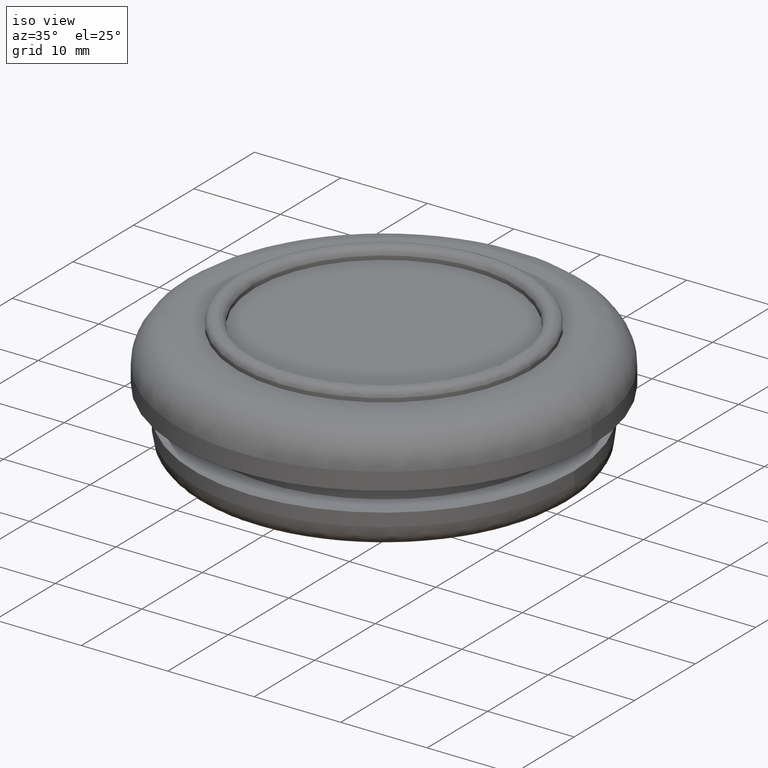
[diagram: clean part render]
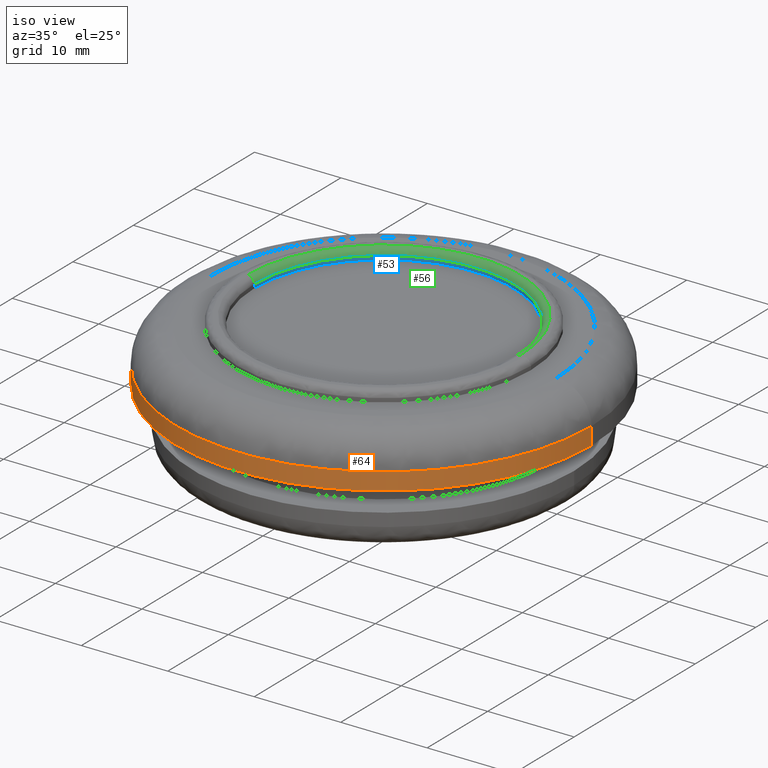
[diagram: same view with three faces highlighted in distinct colors, each labeled with its STEP entity id]
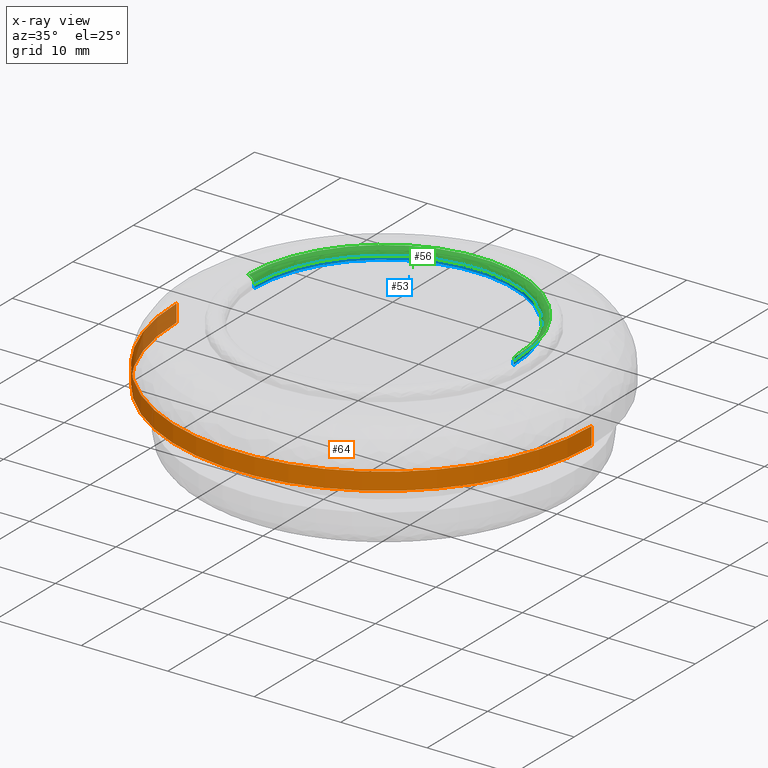
[diagram: x-ray of the same camera — body ghosted, the three highlighted faces saturated]
A machine part, iso view with three faces highlighted in distinct colors.
The next image is the same camera in x-ray (body ghosted, the three faces saturated) — at least one of them is partly hidden behind the body in this view.
Their STEP definitions:

[orange] entity #64 — the highlighted cylindrical surface (partial cylindrical patch) has radius 24 mm, axis along (0, -0, 1).
#64=ADVANCED_FACE('',(#313),#312,.T.);
#312=CYLINDRICAL_SURFACE('',#638,2.40000000000E+001);
#313=FACE_OUTER_BOUND('',#639,.T.);
#635=CARTESIAN_POINT('',(0.00000000000E+000,0.00000000000E+000,0.00000000000E+000));
#636=DIRECTION('',(0.00000000000E+000,-0.00000000000E+000,1.00000000000E+000));
#637=DIRECTION('',(1.00000000000E+000,0.00000000000E+000,0.00000000000E+000));
#638=AXIS2_PLACEMENT_3D('',#635,#636,#637);
#639=EDGE_LOOP('',(#742,#743,#744,#745));
#742=ORIENTED_EDGE('',*,*,#771,.F.);
#743=ORIENTED_EDGE('',*,*,#802,.T.);
#744=ORIENTED_EDGE('',*,*,#798,.T.);
#745=ORIENTED_EDGE('',*,*,#803,.F.);
#771=EDGE_CURVE('',#919,#918,#926,.T.);
#798=EDGE_CURVE('',#1100,#1101,#1102,.T.);
#802=EDGE_CURVE('',#919,#1100,#1126,.T.);
#803=EDGE_CURVE('',#918,#1101,#1132,.T.);
#918=VERTEX_POINT('',#1230);
#919=VERTEX_POINT('',#1231);
#926=CIRCLE('',#1239,2.40000000000E+001);
#1100=VERTEX_POINT('',#1337);
#1101=VERTEX_POINT('',#1338);
#1102=CIRCLE('',#1342,2.40000000000E+001);
#1126=(BOUNDED_CURVE() B_SPLINE_CURVE(1,(#1355,#1356),.UNSPECIFIED.,.F.,.F.) B_SPLINE_CURVE_WITH_KNOTS((2,2),(8.33333134656E-002,9.16666653270E-001),.UNSPECIFIED.) CURVE() GEOMETRIC_REPRESENTATION_ITEM() RATIONAL_B_SPLINE_CURVE((1.00000000000E+000,1.00000000000E+000)) REPRESENTATION_ITEM('') );
#1132=(BOUNDED_CURVE() B_SPLINE_CURVE(1,(#1357,#1358),.UNSPECIFIED.,.F.,.F.) B_SPLINE_CURVE_WITH_KNOTS((2,2),(8.33333333333E-002,9.16666666667E-001),.UNSPECIFIED.) CURVE() GEOMETRIC_REPRESENTATION_ITEM() RATIONAL_B_SPLINE_CURVE((7.50000000000E-001,7.50000000000E-001)) REPRESENTATION_ITEM('') );
#1230=CARTESIAN_POINT('',(-2.40000000000E+001,0.00000000000E+000,7.20000000000E+000));
#1231=CARTESIAN_POINT('',(2.40000000000E+001,-1.18423789293E-015,7.20000000000E+000));
#1236=CARTESIAN_POINT('',(0.00000000000E+000,0.00000000000E+000,7.20000000000E+000));
#1237=DIRECTION('',(-0.00000000000E+000,0.00000000000E+000,-1.00000000000E+000));
#1238=DIRECTION('',(-1.00000000000E+000,-1.22460635382E-016,0.00000000000E+000));
#1239=AXIS2_PLACEMENT_3D('',#1236,#1237,#1238);
#1337=CARTESIAN_POINT('',(2.40000000000E+001,-1.18423789293E-015,9.20000000000E+000));
#1338=CARTESIAN_POINT('',(-2.40000000000E+001,0.00000000000E+000,9.20000000000E+000));
#1339=CARTESIAN_POINT('',(0.00000000000E+000,0.00000000000E+000,9.20000000000E+000));
#1340=DIRECTION('',(-0.00000000000E+000,0.00000000000E+000,-1.00000000000E+000));
#1341=DIRECTION('',(-1.00000000000E+000,-1.22460635382E-016,0.00000000000E+000));
#1342=AXIS2_PLACEMENT_3D('',#1339,#1340,#1341);
#1355=CARTESIAN_POINT('',(2.40000000000E+001,0.00000000000E+000,7.19999995232E+000));
#1356=CARTESIAN_POINT('',(2.40000000000E+001,0.00000000000E+000,9.19999996785E+000));
#1357=CARTESIAN_POINT('',(-2.40000000000E+001,-1.18423789293E-015,7.20000000000E+000));
#1358=CARTESIAN_POINT('',(-2.40000000000E+001,-1.18423789293E-015,9.20000000000E+000));

[blue] entity #53 — the highlighted cylindrical surface (partial cylindrical patch) has radius 15 mm, axis along (0, -0, 1).
#53=ADVANCED_FACE('',(#203),#202,.F.);
#202=CYLINDRICAL_SURFACE('',#457,1.50000000000E+001);
#203=FACE_OUTER_BOUND('',#458,.T.);
#454=CARTESIAN_POINT('',(0.00000000000E+000,0.00000000000E+000,0.00000000000E+000));
#455=DIRECTION('',(0.00000000000E+000,-0.00000000000E+000,1.00000000000E+000));
#456=DIRECTION('',(1.00000000000E+000,-0.00000000000E+000,-0.00000000000E+000));
#457=AXIS2_PLACEMENT_3D('',#454,#455,#456);
#458=EDGE_LOOP('',(#698,#699,#700,#701));
#698=ORIENTED_EDGE('',*,*,#761,.T.);
#699=ORIENTED_EDGE('',*,*,#786,.T.);
#700=ORIENTED_EDGE('',*,*,#787,.F.);
#701=ORIENTED_EDGE('',*,*,#788,.F.);
#761=EDGE_CURVE('',#849,#848,#856,.T.);
#786=EDGE_CURVE('',#848,#1024,#1025,.T.);
#787=EDGE_CURVE('',#1031,#1024,#1032,.T.);
#788=EDGE_CURVE('',#849,#1031,#1038,.T.);
#848=VERTEX_POINT('',#1180);
#849=VERTEX_POINT('',#1181);
#856=CIRCLE('',#1189,1.50000000000E+001);
#1024=VERTEX_POINT('',#1296);
#1025=(BOUNDED_CURVE() B_SPLINE_CURVE(1,(#1297,#1298),.UNSPECIFIED.,.F.,.F.) B_SPLINE_CURVE_WITH_KNOTS((2,2),(8.33332538610E-002,9.16666666064E-001),.UNSPECIFIED.) CURVE() GEOMETRIC_REPRESENTATION_ITEM() RATIONAL_B_SPLINE_CURVE((1.00000000000E+000,1.00000000000E+000)) REPRESENTATION_ITEM('') );
#1031=VERTEX_POINT('',#1299);
#1032=CIRCLE('',#1303,1.50000000000E+001);
#1038=(BOUNDED_CURVE() B_SPLINE_CURVE(1,(#1304,#1305),.UNSPECIFIED.,.F.,.F.) B_SPLINE_CURVE_WITH_KNOTS((2,2),(8.33333333333E-002,9.16666666667E-001),.UNSPECIFIED.) CURVE() GEOMETRIC_REPRESENTATION_ITEM() RATIONAL_B_SPLINE_CURVE((7.50000000000E-001,7.50000000000E-001)) REPRESENTATION_ITEM('') );
#1180=CARTESIAN_POINT('',(1.50000000000E+001,1.77635683940E-015,1.32000000000E+001));
#1181=CARTESIAN_POINT('',(-1.50000000000E+001,0.00000000000E+000,1.32000000000E+001));
#1186=CARTESIAN_POINT('',(0.00000000000E+000,0.00000000000E+000,1.32000000000E+001));
#1187=DIRECTION('',(-0.00000000000E+000,0.00000000000E+000,-1.00000000000E+000));
#1188=DIRECTION('',(-1.00000000000E+000,-1.22460635382E-016,0.00000000000E+000));
#1189=AXIS2_PLACEMENT_3D('',#1186,#1187,#1188);
#1296=CARTESIAN_POINT('',(1.50000000000E+001,1.77635683940E-015,1.36500000000E+001));
#1297=CARTESIAN_POINT('',(1.50000000000E+001,0.00000000000E+000,1.31999999571E+001));
#1298=CARTESIAN_POINT('',(1.50000000000E+001,0.00000000000E+000,1.36499999997E+001));
#1299=CARTESIAN_POINT('',(-1.50000000000E+001,0.00000000000E+000,1.36500000000E+001));
#1300=CARTESIAN_POINT('',(0.00000000000E+000,0.00000000000E+000,1.36500000000E+001));
#1301=DIRECTION('',(-0.00000000000E+000,0.00000000000E+000,-1.00000000000E+000));
#1302=DIRECTION('',(-1.00000000000E+000,-1.22460635382E-016,0.00000000000E+000));
#1303=AXIS2_PLACEMENT_3D('',#1300,#1301,#1302);
#1304=CARTESIAN_POINT('',(-1.50000000000E+001,0.00000000000E+000,1.32000000000E+001));
#1305=CARTESIAN_POINT('',(-1.50000000000E+001,0.00000000000E+000,1.36500000000E+001));

[green] entity #56 — the highlighted face is a freeform B-spline surface patch.
#56=ADVANCED_FACE('',(#233),#232,.T.);
#232=( BOUNDED_SURFACE() B_SPLINE_SURFACE( 2,2,((#490,#491,#492,#493,#494),(#495,#496,#497,#498,#499),(#500,#501,#502,#503,#504),(#505,#506,#507,#508,#509),(#510,#511,#512,#513,#514)), .UNSPECIFIED.,.F.,.F.,.F.) B_SPLINE_SURFACE_WITH_KNOTS((3,2,3),(3,2,3),(0.00000000000E+000,5.00000000000E-001,1.00000000000E+000),(0.00000000000E+000,5.00000000000E-001,1.00000000000E+000), .UNSPECIFIED. ) GEOMETRIC_REPRESENTATION_ITEM() RATIONAL_B_SPLINE_SURFACE(((1.00000000000E+000,7.07106781187E-001,1.00000000000E+000,7.07106781187E-001,1.00000000000E+000),(7.07106781187E-001,5.00000000000E-001,7.07106781187E-001,5.00000000000E-001,7.07106781187E-001),(1.00000000000E+000,7.07106781187E-001,1.00000000000E+000,7.07106781187E-001,1.00000000000E+000),(7.07106781187E-001,5.00000000000E-001,7.07106781187E-001,5.00000000000E-001,7.07106781187E-001),(1.00000000000E+000,7.07106781187E-001,1.00000000000E+000,7.07106781187E-001,1.00000000000E+000))) REPRESENTATION_ITEM('') SURFACE() );
#233=FACE_OUTER_BOUND('',#515,.T.);
#490=CARTESIAN_POINT('',(-1.50000000000E+001,-6.06679874639E-020,1.36500000000E+001));
#491=CARTESIAN_POINT('',(-1.50000000000E+001,-6.06679874639E-020,1.44000000000E+001));
#492=CARTESIAN_POINT('',(-1.57500000000E+001,-6.37013868371E-020,1.44000000000E+001));
#493=CARTESIAN_POINT('',(-1.65000000000E+001,-6.67347862103E-020,1.44000000000E+001));
#494=CARTESIAN_POINT('',(-1.65000000000E+001,-6.67347862103E-020,1.36500000000E+001));
#495=CARTESIAN_POINT('',(-1.50000000000E+001,1.50000000000E+001,1.36500000000E+001));
#496=CARTESIAN_POINT('',(-1.50000000000E+001,1.50000000000E+001,1.44000000000E+001));
#497=CARTESIAN_POINT('',(-1.57500000000E+001,1.57500000000E+001,1.44000000000E+001));
#498=CARTESIAN_POINT('',(-1.65000000000E+001,1.65000000000E+001,1.44000000000E+001));
#499=CARTESIAN_POINT('',(-1.65000000000E+001,1.65000000000E+001,1.36500000000E+001));
#500=CARTESIAN_POINT('',(-9.18545767348E-016,1.50000000000E+001,1.36500000000E+001));
#501=CARTESIAN_POINT('',(-9.18545767348E-016,1.50000000000E+001,1.44000000000E+001));
#502=CARTESIAN_POINT('',(-9.64473055716E-016,1.57500000000E+001,1.44000000000E+001));
#503=CARTESIAN_POINT('',(-1.01040034408E-015,1.65000000000E+001,1.44000000000E+001));
#504=CARTESIAN_POINT('',(-1.01040034408E-015,1.65000000000E+001,1.36500000000E+001));
#505=CARTESIAN_POINT('',(1.50000000000E+001,1.50000000000E+001,1.36500000000E+001));
#506=CARTESIAN_POINT('',(1.50000000000E+001,1.50000000000E+001,1.44000000000E+001));
#507=CARTESIAN_POINT('',(1.57500000000E+001,1.57500000000E+001,1.44000000000E+001));
#508=CARTESIAN_POINT('',(1.65000000000E+001,1.65000000000E+001,1.44000000000E+001));
#509=CARTESIAN_POINT('',(1.65000000000E+001,1.65000000000E+001,1.36500000000E+001));
#510=CARTESIAN_POINT('',(1.50000000000E+001,1.83703086671E-015,1.36500000000E+001));
#511=CARTESIAN_POINT('',(1.50000000000E+001,1.83703086671E-015,1.44000000000E+001));
#512=CARTESIAN_POINT('',(1.57500000000E+001,1.92888241004E-015,1.44000000000E+001));
#513=CARTESIAN_POINT('',(1.65000000000E+001,2.02073395338E-015,1.44000000000E+001));
#514=CARTESIAN_POINT('',(1.65000000000E+001,2.02073395338E-015,1.36500000000E+001));
#515=EDGE_LOOP('',(#710,#711,#712,#713));
#710=ORIENTED_EDGE('',*,*,#787,.T.);
#711=ORIENTED_EDGE('',*,*,#790,.T.);
#712=ORIENTED_EDGE('',*,*,#764,.F.);
#713=ORIENTED_EDGE('',*,*,#791,.F.);
#764=EDGE_CURVE('',#876,#877,#878,.T.);
#787=EDGE_CURVE('',#1031,#1024,#1032,.T.);
#790=EDGE_CURVE('',#1024,#877,#1050,.T.);
#791=EDGE_CURVE('',#1031,#876,#1056,.T.);
#876=VERTEX_POINT('',#1200);
#877=VERTEX_POINT('',#1201);
#878=CIRCLE('',#1205,1.57500000000E+001);
#1024=VERTEX_POINT('',#1296);
#1031=VERTEX_POINT('',#1299);
#1032=CIRCLE('',#1303,1.50000000000E+001);
#1050=(BOUNDED_CURVE() B_SPLINE_CURVE(2,(#1310,#1311,#1312),.UNSPECIFIED.,.F.,.F.) B_SPLINE_CURVE_WITH_KNOTS((3,3),(0.00000000000E+000,5.00000000000E-001),.UNSPECIFIED.) CURVE() GEOMETRIC_REPRESENTATION_ITEM() RATIONAL_B_SPLINE_CURVE((1.00000000000E+000,7.07106781187E-001,1.00000000000E+000)) REPRESENTATION_ITEM('') );
#1056=(BOUNDED_CURVE() B_SPLINE_CURVE(2,(#1313,#1314,#1315),.UNSPECIFIED.,.F.,.F.) B_SPLINE_CURVE_WITH_KNOTS((3,3),(0.00000000000E+000,4.99999997219E-001),.UNSPECIFIED.) CURVE() GEOMETRIC_REPRESENTATION_ITEM() RATIONAL_B_SPLINE_CURVE((7.50000000000E-001,5.30330087112E-001,7.49999997556E-001)) REPRESENTATION_ITEM('') );
#1200=CARTESIAN_POINT('',(-1.57500000000E+001,0.00000000000E+000,1.44000000000E+001));
#1201=CARTESIAN_POINT('',(1.57500000000E+001,1.77635683940E-015,1.44000000000E+001));
#1202=CARTESIAN_POINT('',(0.00000000000E+000,0.00000000000E+000,1.44000000000E+001));
#1203=DIRECTION('',(-0.00000000000E+000,0.00000000000E+000,-1.00000000000E+000));
#1204=DIRECTION('',(-1.00000000000E+000,-1.22460635382E-016,0.00000000000E+000));
#1205=AXIS2_PLACEMENT_3D('',#1202,#1203,#1204);
#1296=CARTESIAN_POINT('',(1.50000000000E+001,1.77635683940E-015,1.36500000000E+001));
#1299=CARTESIAN_POINT('',(-1.50000000000E+001,0.00000000000E+000,1.36500000000E+001));
#1300=CARTESIAN_POINT('',(0.00000000000E+000,0.00000000000E+000,1.36500000000E+001));
#1301=DIRECTION('',(-0.00000000000E+000,0.00000000000E+000,-1.00000000000E+000));
#1302=DIRECTION('',(-1.00000000000E+000,-1.22460635382E-016,0.00000000000E+000));
#1303=AXIS2_PLACEMENT_3D('',#1300,#1301,#1302);
#1310=CARTESIAN_POINT('',(1.50000000000E+001,-1.83690953073E-015,1.36500000000E+001));
#1311=CARTESIAN_POINT('',(1.50000000000E+001,-1.83690953073E-015,1.44000000000E+001));
#1312=CARTESIAN_POINT('',(1.57500000000E+001,-1.92875500727E-015,1.44000000000E+001));
#1313=CARTESIAN_POINT('',(-1.50000000000E+001,2.36847578587E-015,1.36500000000E+001));
#1314=CARTESIAN_POINT('',(-1.50000000000E+001,1.67476529472E-015,1.43999999941E+001));
#1315=CARTESIAN_POINT('',(-1.57499999941E+001,2.96059472222E-015,1.44000000000E+001));